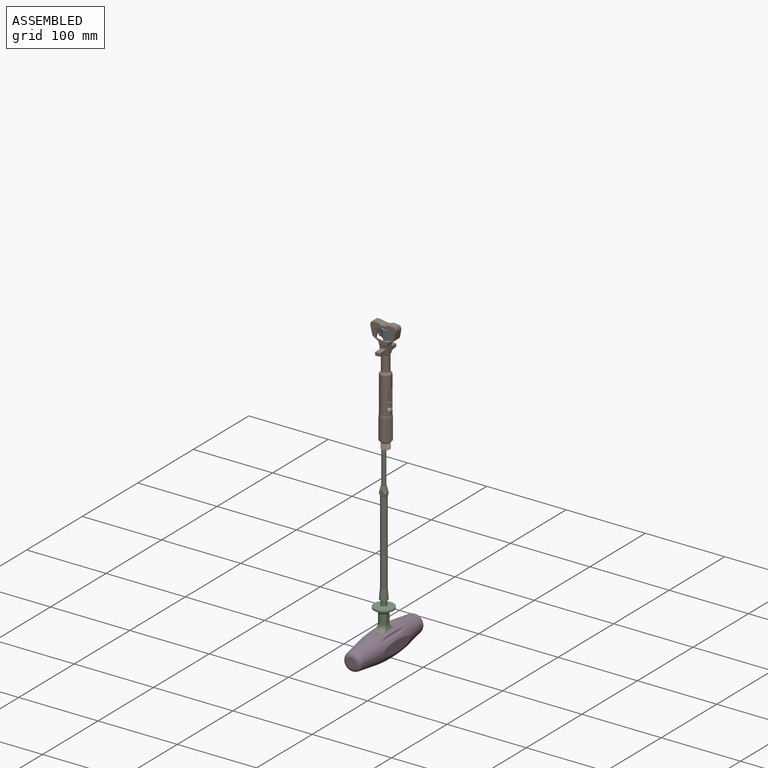
[diagram: assembled view]
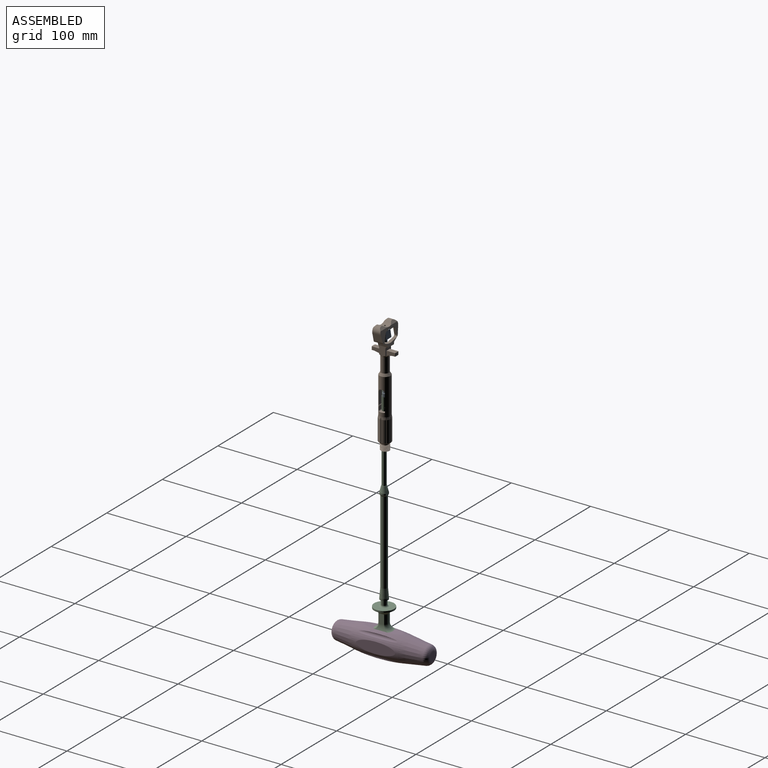
[diagram: assembled view, second angle]
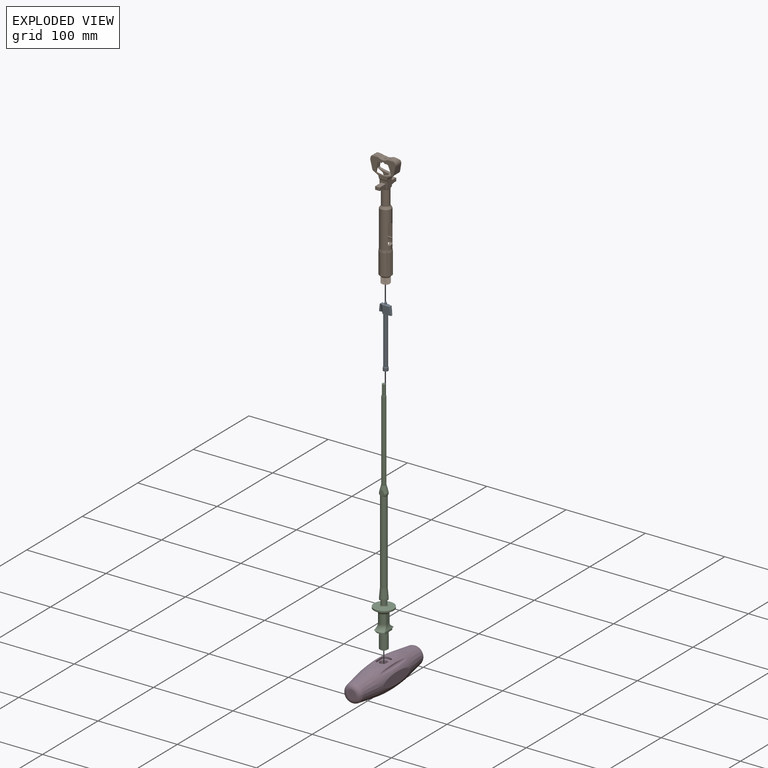
[diagram: exploded view]
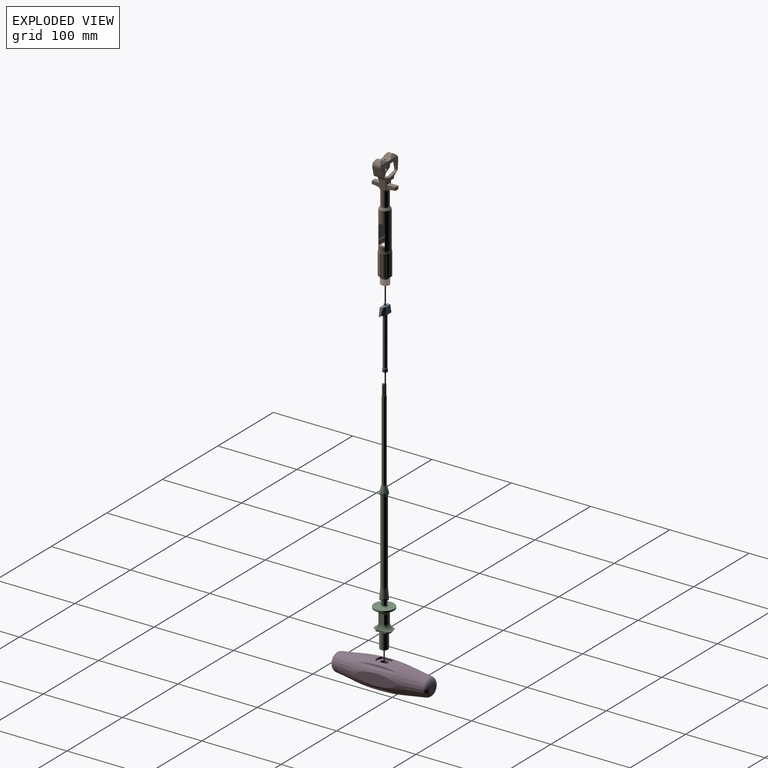
[diagram: exploded view, second angle]
ASSEMBLY  parts=4 mates=4
PART A: 48 faces, bbox 17.3x8.3x78.9 mm
  f0: plane 6x6mm, normal (0,0,-1), area 14.2mm2, adj f1,f2,f3,f4,f5,f6,f7,f8
  f1: plane 13.5x0.63mm, normal (-0.87,0.5,0), area 9.9mm2, adj f0,f12,f15,f47
  f2: plane 13.5x0.63mm, normal (-0.87,0.5,0), area 9.9mm2, adj f0,f3,f14,f47
  f3: plane 13.5x0.73mm, normal (0,1,0), area 9.9mm2, adj f0,f2,f14,f47
  f4: plane 13.5x0.73mm, normal (0,1,0), area 9.9mm2, adj f0,f5,f13,f47
  f5: plane 13.5x0.63mm, normal (0.87,0.5,0), area 9.9mm2, adj f0,f4,f13,f47
  f6: plane 13.5x0.63mm, normal (0.87,0.5,0), area 9.9mm2, adj f0,f7,f45,f47
  f7: plane 13.5x0.63mm, normal (0.87,-0.5,0), area 9.9mm2, adj f0,f6,f45,f47
  f8: plane 13.5x0.63mm, normal (0.87,-0.5,0), area 9.9mm2, adj f0,f9,f17,f47
  f9: plane 13.5x0.73mm, normal (0,-1,0), area 9.9mm2, adj f0,f8,f17,f47
  f10: plane 13.5x0.73mm, normal (0,-1,0), area 9.9mm2, adj f0,f11,f16,f47
  f11: plane 13.5x0.63mm, normal (-0.87,-0.5,0), area 9.9mm2, adj f0,f10,f16,f47
  f12: plane 13.5x0.63mm, normal (-0.87,-0.5,0), area 9.9mm2, adj f0,f1,f15,f47
  f13: plane 1.1x0.63mm, normal (0,0,-1), area 0.1mm2, adj f4,f5,f47
  f14: plane 1.1x0.63mm, normal (0,0,-1), area 0.1mm2, adj f2,f3,f47
  f15: plane 1.27x0.37mm, normal (0,0,-1), area 0.1mm2, adj f1,f12,f47
  f16: plane 1.1x0.63mm, normal (0,0,-1), area 0.1mm2, adj f10,f11,f47
  f17: plane 1.1x0.63mm, normal (0,0,-1), area 0.1mm2, adj f8,f9,f47
  f18: cylinder r=4.75mm len=1.85mm, axis (0,0,-1), area 0.2mm2, adj f21,f26,f36,f40
  f19: cylinder r=4.75mm len=1.85mm, axis (0,0,-1), area 0.2mm2, adj f20,f25,f35,f44
  f20: plane 4.48x2.08mm, normal (0,0,-1), area 6mm2, adj f19,f23,f35,f42,f43,f44
  f21: plane 4.48x2.08mm, normal (0,0,-1), area 6mm2, adj f18,f22,f36,f38,f39,f40
  f22: cone r=8.5mm half-angle=11.3deg, axis (0,0,-1), area 32.7mm2, adj f21,f24,f36,f38,f39
  f23: cone r=8.5mm half-angle=11.3deg, axis (0,0,-1), area 32.7mm2, adj f20,f24,f35,f42,f43
  f24: plane 13.02x5.02mm, normal (0,0,1), area 44.3mm2, adj f22,f23,f27,f35,f36,f37,f40,f41
  f25: plane 5.01x4.71mm, normal (0,0,-1), area 9.6mm2, adj f19,f34,f35,f36,f41,f44
  f26: plane 5.01x4.71mm, normal (0,0,-1), area 9.6mm2, adj f18,f34,f35,f36,f37,f40
  f27: torus R=2.31mm, axis (0,0,-1), area 16.9mm2, adj f24,f28
  f28: revolved ~2.85x2.85mm, area 13.4mm2, adj f27,f29
  f29: cylinder r=1mm len=2mm, axis (0,0,-1), area 1.3mm2, adj f28,f30
  f30: cone r=1mm half-angle=42.3deg, axis (0,0,-1), area 3.5mm2, adj f29,f31
  f31: plane 1x1mm, normal (0,0,1), area 0.8mm2, adj f30
  f32: cylinder r=3mm len=6mm, axis (0,0,-1), area 75.4mm2, adj f0,f33
  f33: cone r=3mm half-angle=45deg, axis (0,0,-1), area 12.2mm2, adj f32,f34
  f34: cylinder r=2.5mm len=60.4mm, axis (0,0,-1), area 948.8mm2, adj f25,f26,f33
  f35: plane 10.82x10.3mm, normal (0,-1,0), area 95.1mm2, adj f19,f20,f23,f24,f25,f26,f37
  f36: plane 10.82x10.3mm, normal (0,1,0), area 95.1mm2, adj f18,f21,f22,f24,f25,f26,f41
  f37: bspline ~16.67x5.59mm, area 27.7mm2, adj f24,f26,f35,f40
  f38: bspline ~16.67x6.05mm, area 9.2mm2, adj f21,f22,f39
  f39: bspline ~16.67x4.58mm, area 2.4mm2, adj f21,f22,f38,f40
  f40: bspline ~16.67x4.42mm, area 22.9mm2, adj f18,f21,f24,f26,f37,f39
  f41: bspline ~16.67x5.59mm, area 27.7mm2, adj f24,f25,f36,f44
  f42: bspline ~16.67x6.05mm, area 9.2mm2, adj f20,f23,f43
  f43: bspline ~16.67x4.58mm, area 2.4mm2, adj f20,f23,f42,f44
  f44: bspline ~16.67x4.42mm, area 22.9mm2, adj f19,f20,f24,f25,f41,f43
  f45: plane 1.27x0.37mm, normal (0,0,-1), area 0.1mm2, adj f6,f7,f47
  f46: cone r=0mm half-angle=60deg, axis (0,0,-1), area 15.2mm2, adj f47
  f47: cylinder r=2.05mm len=15.5mm, axis (0,0,-1), area 95.5mm2, adj f0,f1,f2,f3,f4,f5,f6,f7
PART B: 133 faces, bbox 159.4x43.4x46.7 mm
  f0: plane 4x1.71mm, normal (-1,0,0), area 3.7mm2, adj f1,f130,f131,f132
  f1: plane 1x0.55mm, normal (0,-1,0), area 0.5mm2, adj f0,f2,f130,f132
  f2: plane 23.46x23.45mm, normal (-1,0,0), area 40.4mm2, adj f1,f3,f128,f129,f130,f131,f132
  f3: cylinder r=5.4mm len=10.8mm, axis (1,0,0), area 25.9mm2, adj f2,f4,f128,f129
  f4: plane 10.75x10.74mm, normal (1,0,0), area 15.7mm2, adj f3,f5,f128,f129
  f5: cylinder r=4.5mm len=9mm, axis (1,0,0), area 56.5mm2, adj f4,f6
  f6: plane 12.58x12.58mm, normal (-1,0,0), area 60.7mm2, adj f5,f7
  f7: cone r=7.5mm half-angle=45deg, axis (1,0,0), area 69.7mm2, adj f6,f8,f113,f114,f115,f116,f117,f118
  f8: cylinder r=7.5mm len=26.69mm, axis (1,0,0), area 130.5mm2, adj f7,f9,f113,f127
  f9: cone r=7.48mm half-angle=4.7deg, axis (-1,0,0), area 1mm2, adj f8,f10,f113,f127
  f10: cone r=7.5mm half-angle=9.5deg, axis (-1,0,0), area 15.3mm2, adj f9,f11,f113,f127
  f11: cylinder r=7mm len=46mm, axis (1,0,0), area 1492.2mm2, adj f10,f12,f14,f16,f18,f89,f90,f91
  f12: plane 19.4x18.91mm, normal (1,0,0), area 23.8mm2, adj f11,f13,f92,f96
  f13: cylinder r=3.35mm len=6.7mm, axis (-1,0,0), area 0.2mm2, adj f12,f92,f93,f94,f95,f96
  f14: cone r=7.5mm half-angle=9.5deg, axis (-1,0,0), area 15.3mm2, adj f11,f15,f123,f125
  f15: cone r=7.48mm half-angle=4.7deg, axis (-1,0,0), area 1mm2, adj f14,f123,f124,f125
  f16: cone r=7.5mm half-angle=9.5deg, axis (-1,0,0), area 15.3mm2, adj f11,f17,f121,f123
  f17: cone r=7.48mm half-angle=4.7deg, axis (-1,0,0), area 1mm2, adj f16,f121,f122,f123
  f18: plane 73.78x15.1mm, normal (0,1,0), area 332.1mm2, adj f11,f19,f72,f73,f74,f75,f76,f77
  f19: plane 8.22x3.31mm, normal (-0.24,0,0.97), area 23.8mm2, adj f18,f20,f72,f88
  f20: plane 32.02x21.72mm, normal (0.12,-0.99,0), area 286.9mm2, adj f19,f21,f58,f59,f60,f61,f62,f63
  f21: cylinder r=10mm len=12.44mm, axis (0,-1,0), area 123.9mm2, adj f20,f22,f23,f56,f57,f58,f59,f65
  f22: plane 10.27x3.47mm, normal (0.5,0.87,0), area 11.6mm2, adj f21,f23,f59
  f23: plane 31.9x23.9mm, normal (0,1,0), area 361.8mm2, adj f21,f22,f24,f45,f46,f47,f48,f49
  f24: plane 12.44x10.45mm, normal (0,0,1), area 91.6mm2, adj f23,f25,f26,f35,f44,f45,f61,f78
  f25: cylinder r=2.65mm len=10.19mm, axis (0,0,1), area 41.8mm2, adj f24,f26,f60,f61,f79,f80
  f26: plane 10.01x9.64mm, normal (0,-1,0), area 49.9mm2, adj f24,f25,f27,f28,f32,f33,f34,f78
  f27: plane 0.07x0.05mm, normal (1,0,0), area 0mm2, adj f26,f28,f78
  f28: plane 11.18x7.49mm, normal (0,0,-1), area 49.2mm2, adj f26,f27,f29,f30,f31,f32,f78
  f29: cone r=12mm half-angle=78.7deg, axis (1,0,0), area 32.9mm2, adj f28,f30,f33,f78
  f30: plane 6x3.38mm, normal (-1,0,0), area 18.2mm2, adj f28,f29,f31,f33
  f31: cylinder r=15mm len=6mm, axis (1,0,0), area 24.2mm2, adj f28,f30,f32,f33
  f32: plane 11x6mm, normal (1,0,0), area 65.4mm2, adj f26,f28,f31,f33
  f33: plane 11.18x7.49mm, normal (0,0,1), area 49.2mm2, adj f26,f29,f30,f31,f32,f34,f78
  f34: plane 0.07x0.05mm, normal (1,0,0), area 0mm2, adj f26,f33,f78
  f35: torus R=7.49mm, axis (1,0,0), area 30.7mm2, adj f24,f36,f37,f41,f42,f43,f44,f46
  f36: plane 0.07x0.05mm, normal (1,0,0), area 0mm2, adj f35,f37,f44
  f37: plane 11.18x7.49mm, normal (0,0,1), area 49.2mm2, adj f35,f36,f38,f39,f40,f41,f44
  f38: cylinder r=15mm len=6mm, axis (1,0,0), area 24.2mm2, adj f37,f39,f40,f42
  f39: plane 11x6mm, normal (1,0,0), area 65.4mm2, adj f37,f38,f42,f44
  f40: plane 6x3.38mm, normal (-1,0,0), area 18.2mm2, adj f37,f38,f41,f42
  f41: cone r=12mm half-angle=78.7deg, axis (1,0,0), area 32.9mm2, adj f35,f37,f40,f42
  f42: plane 11.18x7.49mm, normal (0,0,-1), area 49.2mm2, adj f35,f38,f39,f40,f41,f43,f44
  f43: plane 0.07x0.05mm, normal (1,0,0), area 0mm2, adj f35,f42,f44
  f44: plane 10.01x9.64mm, normal (0,1,0), area 49.9mm2, adj f24,f35,f36,f37,f39,f42,f43,f45
  f45: cylinder r=2mm len=10mm, axis (0,0,1), area 20.9mm2, adj f23,f24,f44,f46
  f46: plane 10.44x1.66mm, normal (0,0,-1), area 7.8mm2, adj f23,f35,f44,f45,f47,f101
  f47: plane 3x1.65mm, normal (-0.32,0,-0.95), area 5.2mm2, adj f23,f46,f48,f101
  f48: plane 6x3.34mm, normal (-0.87,0,-0.49), area 11.3mm2, adj f23,f47,f49,f101
  f49: cylinder r=3mm len=1.89mm, axis (0,-1,0), area 4mm2, adj f23,f48,f50,f101
  f50: plane 9.85x4.46mm, normal (-0.24,0,-0.97), area 18.2mm2, adj f23,f49,f59,f84,f101
  f51: cylinder r=1mm len=1.65mm, axis (0,-1,0), area 2.6mm2, adj f23,f52,f55,f101
  f52: plane 7.8x1.65mm, normal (0.98,0,0.17), area 13.1mm2, adj f23,f51,f71,f101
  f53: plane 3x1.65mm, normal (-1,0,0), area 4.9mm2, adj f23,f54,f86,f101
  f54: cylinder r=2mm len=1.97mm, axis (0,-1,0), area 4.6mm2, adj f23,f53,f55,f101
  f55: plane 10.01x1.77mm, normal (-0.17,0,0.98), area 16.8mm2, adj f23,f51,f54,f101
  f56: plane 10.27x3.47mm, normal (0.5,0.87,0), area 11.6mm2, adj f21,f23,f65
  f57: cylinder r=1mm len=2.45mm, axis (1,0,0), area 15.4mm2, adj f21,f86
  f58: plane 12.88x3.45mm, normal (0.69,-0.72,0), area 33.8mm2, adj f20,f21,f59
  f59: cylinder r=6mm len=10.53mm, axis (0,-1,0), area 126mm2, adj f20,f21,f22,f23,f50,f58,f83,f84
  f60: plane 10.19x1mm, normal (-1,0,0), area 10.2mm2, adj f20,f25,f61,f80
  f61: plane 12.7x3.05mm, normal (-0.32,0,0.95), area 39mm2, adj f20,f23,f24,f25,f60,f62
  f62: plane 12.32x6mm, normal (-0.87,0,0.49), area 83.2mm2, adj f20,f23,f61,f63
  f63: cylinder r=3mm len=11.91mm, axis (0,-1,0), area 28.9mm2, adj f20,f23,f62,f64
  f64: plane 11.68x9.31mm, normal (-0.24,0,0.97), area 106.6mm2, adj f20,f23,f63,f65
  f65: cylinder r=6mm len=10.53mm, axis (0,-1,0), area 126.4mm2, adj f20,f21,f23,f56,f64,f66
  f66: plane 12.88x3.45mm, normal (0.69,-0.72,0), area 33.8mm2, adj f20,f21,f65
  f67: plane 10.47x3mm, normal (-1,0,0), area 31.4mm2, adj f20,f23,f68,f86
  f68: cylinder r=2mm len=10.62mm, axis (0,-1,0), area 25mm2, adj f20,f23,f67,f69
  f69: plane 11.65x8.41mm, normal (-0.37,0,-0.93), area 101mm2, adj f20,f23,f68,f70
  f70: cylinder r=2mm len=11.97mm, axis (0,-1,0), area 36.1mm2, adj f20,f23,f69,f71
  f71: cylinder r=22mm len=12.21mm, axis (0,-1,0), area 95.7mm2, adj f20,f23,f52,f70,f75,f76
  f72: cylinder r=2mm len=3.61mm, axis (0,1,0), area 11mm2, adj f18,f19,f20,f73
  f73: plane 3.67x2.08mm, normal (0.98,0,0.22), area 7.8mm2, adj f18,f20,f72,f74
  f74: cylinder r=1mm len=3.69mm, axis (0,-1,0), area 1.7mm2, adj f18,f20,f73,f75
  f75: plane 7.8x3.86mm, normal (0.98,0,0.17), area 29.9mm2, adj f18,f20,f71,f74
  f76: cylinder r=3.35mm len=54.71mm, axis (-1,0,0), area 565.6mm2, adj f18,f71,f100,f101
  f77: cylinder r=5mm len=18.56mm, axis (1,0,0), area 446.8mm2, adj f18,f35,f78,f101,f102
  f78: torus R=7.49mm, axis (1,0,0), area 30.7mm2, adj f18,f24,f26,f27,f28,f29,f33,f34
  f79: plane 10.44x2.11mm, normal (0,0,-1), area 7.7mm2, adj f18,f25,f26,f78,f80
  f80: plane 4.35x3.05mm, normal (-0.32,0,-0.95), area 12.6mm2, adj f18,f20,f25,f60,f79,f81
  f81: plane 6x3.97mm, normal (-0.87,0,-0.49), area 25.9mm2, adj f18,f20,f80,f82
  f82: cylinder r=3mm len=3.56mm, axis (0,-1,0), area 8.4mm2, adj f18,f20,f81,f83
  f83: plane 9.85x6.14mm, normal (-0.24,0,-0.97), area 28.8mm2, adj f18,f20,f59,f82,f84
  f84: cylinder r=3.35mm len=11.1mm, axis (-0.77,0,-0.64), area 108.2mm2, adj f18,f50,f59,f83,f85,f101
  f85: plane 8.02x6.73mm, normal (-0.77,0,-0.64), area 65.3mm2, adj f18,f84,f86,f101
  f86: cylinder r=2mm len=10.47mm, axis (0,-1,0), area 46.9mm2, adj f18,f20,f23,f53,f57,f67,f85,f87
  f87: plane 6x2.12mm, normal (-1,0,0), area 12.7mm2, adj f18,f20,f86,f88
  f88: cylinder r=2mm len=2.3mm, axis (0,1,0), area 5.9mm2, adj f18,f19,f20,f87
  f89: plane 15x11.49mm, normal (0,1,0), area 172.3mm2, adj f11,f90,f100
  f90: cylinder r=1.14mm len=11.49mm, axis (0,0,-1), area 28mm2, adj f11,f89,f91
  f91: plane 11.49x4mm, normal (0,1,0), area 46mm2, adj f11,f90,f92
  f92: cylinder r=1mm len=12.47mm, axis (0,0,-1), area 16.4mm2, adj f11,f12,f13,f91,f93
  f93: plane 6.15x0.06mm, normal (0,1,0), area 0.4mm2, adj f11,f13,f92,f94
  f94: plane 7x6.7mm, normal (1,0,0), area 27.4mm2, adj f11,f13,f93,f95
  f95: plane 6.15x0.06mm, normal (0,-1,0), area 0.4mm2, adj f11,f13,f94,f96
  f96: cylinder r=1mm len=12.47mm, axis (0,0,-1), area 16.4mm2, adj f11,f12,f13,f95,f97
  f97: plane 11.49x4mm, normal (0,-1,0), area 46mm2, adj f11,f96,f98
  f98: cylinder r=1.14mm len=11.49mm, axis (0,0,-1), area 28mm2, adj f11,f97,f99
  f99: plane 15x11.49mm, normal (0,-1,0), area 172.3mm2, adj f11,f98,f100
  f100: cylinder r=4mm len=13.15mm, axis (0,0,-1), area 87.9mm2, adj f11,f18,f76,f89,f99,f101
  f101: plane 73.78x15.1mm, normal (0,-1,0), area 371.4mm2, adj f11,f35,f46,f47,f48,f49,f50,f51
  f102: cone r=7mm half-angle=33.7deg, axis (-1,0,0), area 109.5mm2, adj f11,f18,f77,f101
  f103: cone r=7.5mm half-angle=9.5deg, axis (-1,0,0), area 15.3mm2, adj f11,f104,f119,f121
  f104: cone r=7.48mm half-angle=4.7deg, axis (-1,0,0), area 1mm2, adj f103,f119,f120,f121
  f105: cone r=7.5mm half-angle=9.5deg, axis (-1,0,0), area 15.3mm2, adj f11,f106,f117,f119
  f106: cone r=7.48mm half-angle=4.7deg, axis (-1,0,0), area 1mm2, adj f105,f117,f118,f119
  f107: cone r=7.5mm half-angle=9.5deg, axis (-1,0,0), area 15.3mm2, adj f11,f108,f115,f117
  f108: cone r=7.48mm half-angle=4.7deg, axis (-1,0,0), area 1mm2, adj f107,f115,f116,f117
  f109: cone r=7.5mm half-angle=9.5deg, axis (-1,0,0), area 15.3mm2, adj f11,f110,f113,f115
  f110: cone r=7.48mm half-angle=4.7deg, axis (-1,0,0), area 1mm2, adj f109,f113,f114,f115
  f111: cone r=7.5mm half-angle=9.5deg, axis (-1,0,0), area 15.3mm2, adj f11,f112,f125,f127
  f112: cone r=7.48mm half-angle=4.7deg, axis (-1,0,0), area 1mm2, adj f111,f125,f126,f127
  f113: cylinder r=0.5mm len=30.29mm, axis (-1,0,0), area 44.6mm2, adj f7,f8,f9,f10,f109,f110,f114
  f114: cylinder r=7.5mm len=26.69mm, axis (1,0,0), area 130.5mm2, adj f7,f110,f113,f115
  f115: cylinder r=0.5mm len=30.29mm, axis (-1,0,0), area 44.6mm2, adj f7,f107,f108,f109,f110,f114,f116
  f116: cylinder r=7.5mm len=26.69mm, axis (1,0,0), area 130.5mm2, adj f7,f108,f115,f117
  f117: cylinder r=0.5mm len=30.29mm, axis (-1,0,0), area 44.6mm2, adj f7,f105,f106,f107,f108,f116,f118
  f118: cylinder r=7.5mm len=26.69mm, axis (1,0,0), area 130.5mm2, adj f7,f106,f117,f119
  f119: cylinder r=0.5mm len=30.29mm, axis (-1,0,0), area 44.6mm2, adj f7,f103,f104,f105,f106,f118,f120
  f120: cylinder r=7.5mm len=26.69mm, axis (1,0,0), area 130.5mm2, adj f7,f104,f119,f121
  f121: cylinder r=0.5mm len=30.29mm, axis (-1,0,0), area 44.5mm2, adj f7,f16,f17,f103,f104,f120,f122
  f122: cylinder r=7.5mm len=26.69mm, axis (1,0,0), area 130.5mm2, adj f7,f17,f121,f123
  f123: cylinder r=0.5mm len=30.29mm, axis (-1,0,0), area 44.6mm2, adj f7,f14,f15,f16,f17,f122,f124
  f124: cylinder r=7.5mm len=26.69mm, axis (1,0,0), area 130.5mm2, adj f7,f15,f123,f125
  f125: cylinder r=0.5mm len=30.29mm, axis (-1,0,0), area 44.6mm2, adj f7,f14,f15,f111,f112,f124,f126
  f126: cylinder r=7.5mm len=26.69mm, axis (1,0,0), area 130.5mm2, adj f7,f112,f125,f127
  f127: cylinder r=0.5mm len=30.29mm, axis (-1,0,0), area 44.6mm2, adj f7,f8,f9,f10,f111,f112,f126
  f128: bspline ~12.47x10.8mm, area 204.6mm2, adj f2,f3,f4,f129
  f129: bspline ~12.47x10.8mm, area 204.5mm2, adj f2,f3,f4,f128
  f130: cylinder r=2.3mm len=4mm, axis (-1,0,0), area 4.8mm2, adj f0,f1,f2,f131
  f131: plane 14.4x13.95mm, normal (0,1,0), area 0.5mm2, adj f0,f2,f130,f132
  f132: cylinder r=3.35mm len=6.04mm, axis (-1,0,0), area 1mm2, adj f0,f1,f2,f131
PART C: 52 faces, bbox 30.3x26.3x303.4 mm
  f0: torus R=9mm, axis (0,0,1), area 52mm2, adj f8,f26,f39,f42
  f1: cylinder r=6mm len=11mm, axis (0,0,1), area 130mm2, adj f7,f9,f35,f40
  f2: torus R=13.4mm, axis (0,0,1), area 112.5mm2, adj f8,f10,f38,f43
  f3: plane 13.19x4.83mm, normal (0,0,1), area 28.7mm2, adj f4,f9,f36,f38,f43,f44
  f4: cylinder r=8.98mm len=12.02mm, axis (0,0,1), area 32.9mm2, adj f3,f6,f37,f41
  f5: cylinder r=8.98mm len=12.02mm, axis (0,0,1), area 32.9mm2, adj f6,f10,f37,f41
  f6: plane 17.96x12.02mm, normal (0,0,1), area 119.9mm2, adj f4,f5,f27,f37,f41
  f7: torus R=9mm, axis (0,0,1), area 52mm2, adj f1,f26,f39,f42
  f8: cylinder r=6mm len=11mm, axis (0,0,1), area 130mm2, adj f0,f2,f35,f40
  f9: torus R=13.4mm, axis (0,0,1), area 112.5mm2, adj f1,f3,f38,f43
  f10: plane 13.19x4.83mm, normal (0,0,1), area 28.7mm2, adj f2,f5,f36,f38,f43,f44
  f11: cone r=5mm half-angle=14deg, axis (0,0,1), area 178mm2, adj f12,f13,f17,f33,f34
  f12: cylinder r=5mm len=8mm, axis (0,0,1), area 18.5mm2, adj f11,f15,f33,f34
  f13: cylinder r=5mm len=8mm, axis (0,0,1), area 18.5mm2, adj f11,f14,f33,f34
  f14: cone r=4mm half-angle=33.7deg, axis (0,0,-1), area 20.1mm2, adj f13,f18,f33,f34
  f15: cone r=4mm half-angle=33.7deg, axis (0,0,-1), area 20.1mm2, adj f12,f18,f33,f34
  f16: cylinder r=2.7mm len=102mm, axis (0,0,1), area 1730.4mm2, adj f17,f32
  f17: plane 6x6mm, normal (0,0,-1), area 5.4mm2, adj f11,f16
  f18: cylinder r=4mm len=105mm, axis (0,0,1), area 2638.9mm2, adj f14,f15,f19
  f19: cone r=4mm half-angle=5deg, axis (0,0,1), area 326.4mm2, adj f18,f20
  f20: cylinder r=5mm len=10mm, axis (0,0,1), area 62.8mm2, adj f19,f21
  f21: plane 10x10mm, normal (0,0,1), area 40.1mm2, adj f20,f22
  f22: cylinder r=3.5mm len=7mm, axis (0,0,1), area 131.9mm2, adj f21,f23
  f23: torus R=5.5mm, axis (0,0,1), area 83.4mm2, adj f22,f24
  f24: plane 25x25mm, normal (0,0,-1), area 395.8mm2, adj f23,f25
  f25: cylinder r=12.5mm len=25mm, axis (0,0,1), area 157.1mm2, adj f24,f26
  f26: cone r=7.46mm half-angle=59.2deg, axis (0,0,-1), area 367.6mm2, adj f0,f7,f25
  f27: cylinder r=5mm len=10mm, axis (0,0,1), area 125.7mm2, adj f6,f28
  f28: plane 10.25x10.25mm, normal (0,0,-1), area 4mm2, adj f27,f29
  f29: cylinder r=5.12mm len=16mm, axis (0,0,1), area 515.2mm2, adj f28,f30
  f30: cone r=4.5mm half-angle=51.3deg, axis (0,0,-1), area 24.2mm2, adj f29,f31
  f31: plane 9x9mm, normal (0,0,1), area 63.6mm2, adj f30
  f32: plane 5.4x5.4mm, normal (0,0,-1), area 9.1mm2, adj f16,f45,f46,f47,f48,f49,f50
  f33: plane 8.82x7.32mm, normal (1,0,0), area 33.5mm2, adj f11,f12,f13,f14,f15
  f34: plane 8.38x6.88mm, normal (-1,0,0), area 33.5mm2, adj f11,f12,f13,f14,f15
  f35: plane 11x6.63mm, normal (0,1,0), area 73mm2, adj f1,f8,f38,f39
  f36: plane 13.35x0.5mm, normal (0,0,1), area 6.4mm2, adj f3,f10,f37,f38
  f37: plane 13.35x2.5mm, normal (0,1,0), area 33.3mm2, adj f4,f5,f6,f36
  f38: cylinder r=17mm len=17.74mm, axis (-1,0,0), area 70.1mm2, adj f2,f3,f9,f10,f35,f36
  f39: cylinder r=2.58mm len=6.63mm, axis (-1,0,0), area 13.1mm2, adj f0,f7,f35
  f40: plane 11x6.63mm, normal (0,-1,0), area 73mm2, adj f1,f8,f42,f43
  f41: plane 13.35x2.5mm, normal (0,-1,0), area 33.3mm2, adj f4,f5,f6,f44
  f42: cylinder r=2.58mm len=6.63mm, axis (-1,0,0), area 13.1mm2, adj f0,f7,f40
  f43: cylinder r=17mm len=17.74mm, axis (-1,0,0), area 70.1mm2, adj f2,f3,f9,f10,f40,f44
  f44: plane 13.35x0.5mm, normal (0,0,1), area 6.4mm2, adj f3,f10,f41,f43
  f45: plane 13.5x2mm, normal (-0.5,-0.87,0), area 31.1mm2, adj f32,f46,f50,f51
  f46: plane 13.5x2.31mm, normal (-1,0,0), area 31.1mm2, adj f32,f45,f47,f51
  f47: plane 13.5x2mm, normal (-0.5,0.87,0), area 31.1mm2, adj f32,f46,f48,f51
  f48: plane 13.5x2mm, normal (0.5,0.87,0), area 31.1mm2, adj f32,f47,f49,f51
  f49: plane 13.5x2.31mm, normal (1,0,0), area 31.1mm2, adj f32,f48,f50,f51
  f50: plane 13.5x2mm, normal (0.5,-0.87,0), area 31.1mm2, adj f32,f45,f49,f51
  f51: plane 4.61x4mm, normal (0,0,-1), area 13.8mm2, adj f45,f46,f47,f48,f49,f50
PART D: 25 faces, bbox 35x35x121 mm
  f0: plane 48.53x14.18mm, normal (-1,0,0), area 338.1mm2, adj f1,f15,f16,f17,f18
  f1: revolved ~57.74x35mm, area 3072.3mm2, adj f0,f2,f3,f8,f9,f10,f11,f12
  f2: cone r=15.37mm half-angle=8.4deg, axis (0,0,1), area 2230mm2, adj f1,f7
  f3: cone r=15.37mm half-angle=8.4deg, axis (0,0,-1), area 2230mm2, adj f1,f4
  f4: torus R=5.5mm, axis (0,0,-1), area 517mm2, adj f3,f5
  f5: plane 11x11mm, normal (0,0,1), area 95mm2, adj f4
  f6: plane 11x11mm, normal (0,0,-1), area 95mm2, adj f7
  f7: torus R=5.5mm, axis (0,0,-1), area 517mm2, adj f2,f6
  f8: plane 48.53x14.18mm, normal (1,0,0), area 537.4mm2, adj f1
  f9: plane 48.53x14.18mm, normal (0,-1,0), area 539.1mm2, adj f1
  f10: plane 48.53x14.18mm, normal (0,1,0), area 539.1mm2, adj f1
  f11: cylinder r=3mm len=48.57mm, axis (0,0,-1), area 218.5mm2, adj f1
  f12: cylinder r=3mm len=48.54mm, axis (0,0,-1), area 216.3mm2, adj f1
  f13: cylinder r=3mm len=48.56mm, axis (0,0,-1), area 221.5mm2, adj f1
  f14: cylinder r=3mm len=48.59mm, axis (0,0,-1), area 220.2mm2, adj f1
  f15: plane 13.18x2.5mm, normal (0,1,0), area 33mm2, adj f0,f16,f18,f19
  f16: cylinder r=8.98mm len=12.1mm, axis (-1,0,0), area 33.2mm2, adj f0,f15,f17,f19
  f17: plane 13.36x2.5mm, normal (0,-1,0), area 33.4mm2, adj f0,f16,f18,f19
  f18: cylinder r=8.98mm len=12.1mm, axis (-1,0,0), area 33.2mm2, adj f0,f15,f17,f19
  f19: plane 17.96x12.1mm, normal (-1,0,0), area 121mm2, adj f15,f16,f17,f18,f20
  f20: cylinder r=5mm len=10mm, axis (-1,0,0), area 125.7mm2, adj f19,f21
  f21: plane 10.25x10.25mm, normal (1,0,0), area 4mm2, adj f20,f22
  f22: cylinder r=5.12mm len=16mm, axis (-1,0,0), area 515.2mm2, adj f21,f23
  f23: cone r=4.5mm half-angle=51.3deg, axis (-1,0,0), area 24.2mm2, adj f22,f24
  f24: plane 9x9mm, normal (-1,0,0), area 63.6mm2, adj f23
PLACE A rot(axis=(0,0,1),1.3deg) t=(219.42,-95.36,-684.26)mm
PLACE B rot(axis=(0.71,0,0.71),180deg) t=(219.42,-95.36,-600.17)mm
PLACE C rot(axis=(0.7,0.71,0),180deg) t=(218.4,-97.22,-684.26)mm
PLACE D rot(axis=(0.57,0.59,-0.57),119.3deg) t=(218.4,-97.22,-965.84)mm
MATE slider D.f20 <-> C.f0  axis (0,0,1) through (218.4,-97.22,-972.84)mm
MATE fastened C.f0 <-> A.f13  axis (0,0,1) through (218.4,-97.22,-670.76)mm
MATE revolute A.f18 <-> B.f57  axis (0,0,-1) through (219.42,-95.36,-606.06)mm
MATE fastened D.f20 <-> C.f0  axis (0,0,1) through (218.4,-97.22,-972.84)mm
